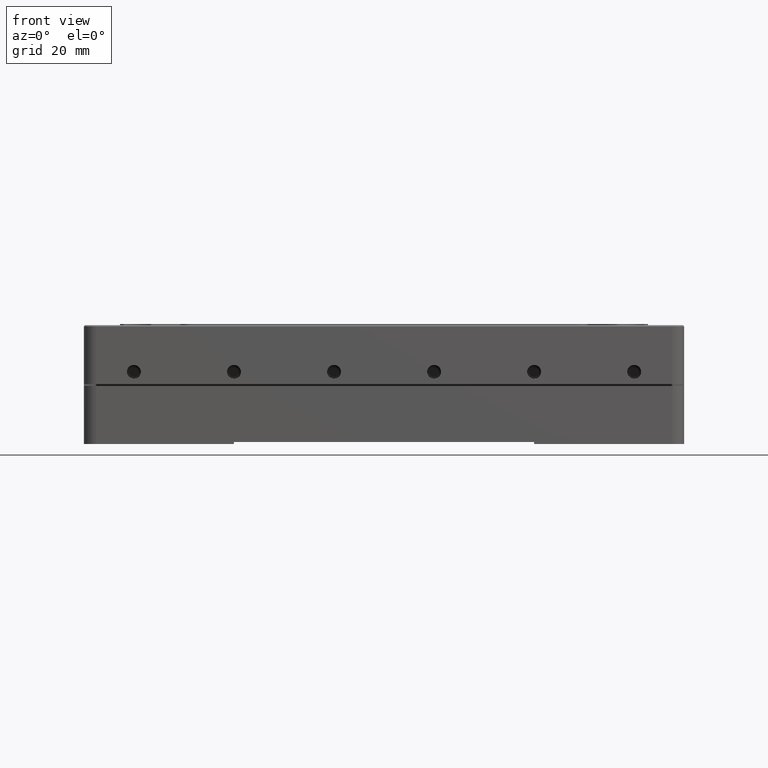
[diagram: clean part render]
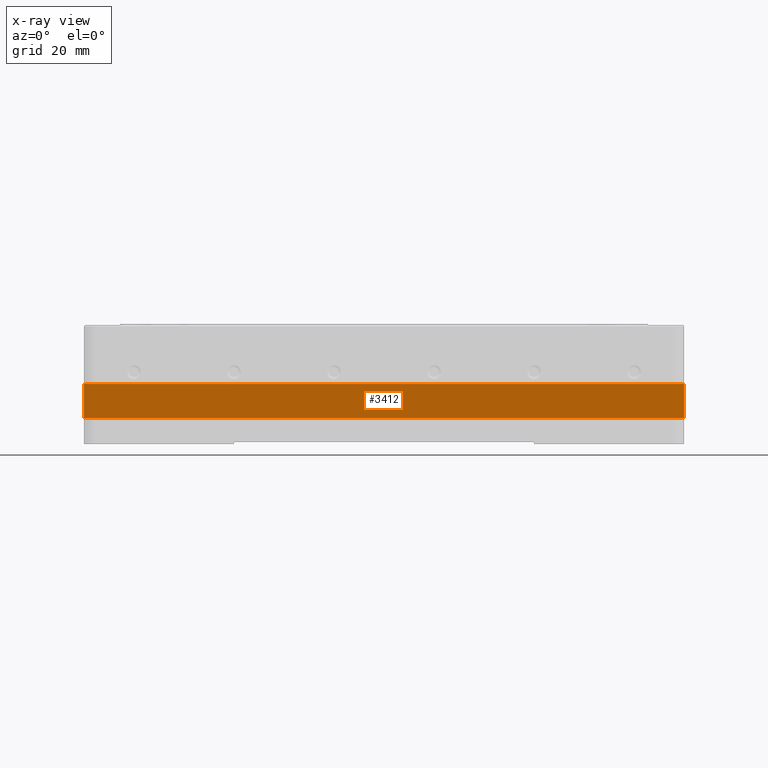
[diagram: x-ray — body ghosted, one internal face saturated and labeled with its STEP entity id]
A machine part, front view, then the same camera in x-ray: the body is ghosted and one INTERNAL B-rep face — a face not visible from any outside direction — is saturated and labeled: STEP entity #3412.
In plain terms, the highlighted planar face has unit normal (0, -1, 0).
Its self-contained STEP definition (entity closure, byte-faithful):
#851 = DIRECTION ( 'NONE',  ( -1.000000000000000000, 0.000000000000000000, -0.000000000000000000 ) ) ;
#1558 = PLANE ( 'NONE',  #13028 ) ;
#1733 = VECTOR ( 'NONE', #8888, 1000.000000000000000 ) ;
#1736 = LINE ( 'NONE', #19128, #13690 ) ;
#2069 = CARTESIAN_POINT ( 'NONE',  ( 75.00000000000000000, -39.50000000000000000, 0.000000000000000000 ) ) ;
#2229 = VERTEX_POINT ( 'NONE', #5306 ) ;
#3028 = EDGE_CURVE ( 'NONE', #14341, #11116, #10330, .T. ) ;
#3412 = ADVANCED_FACE ( 'NONE', ( #10071 ), #1558, .T. ) ;
#3464 = ORIENTED_EDGE ( 'NONE', *, *, #11761, .T. ) ;
#3637 = DIRECTION ( 'NONE',  ( -1.000000000000000000, -0.000000000000000000, -0.000000000000000000 ) ) ;
#4755 = ORIENTED_EDGE ( 'NONE', *, *, #3028, .T. ) ;
#5044 = VECTOR ( 'NONE', #3637, 1000.000000000000000 ) ;
#5228 = VERTEX_POINT ( 'NONE', #19791 ) ;
#5306 = CARTESIAN_POINT ( 'NONE',  ( 75.00000000000000000, -39.50000000000000000, -8.000000000000000000 ) ) ;
#5384 = LINE ( 'NONE', #2069, #1733 ) ;
#7398 = VECTOR ( 'NONE', #851, 1000.000000000000000 ) ;
#7664 = CARTESIAN_POINT ( 'NONE',  ( -75.00000000000000000, -39.50000000000000000, -8.000000000000000000 ) ) ;
#8157 = CARTESIAN_POINT ( 'NONE',  ( 75.00000000000000000, -39.50000000000000000, 0.5000000000000000000 ) ) ;
#8176 = EDGE_LOOP ( 'NONE', ( #21789, #4755, #3464, #20068 ) ) ;
#8888 = DIRECTION ( 'NONE',  ( 0.000000000000000000, 0.000000000000000000, -1.000000000000000000 ) ) ;
#10071 = FACE_OUTER_BOUND ( 'NONE', #8176, .T. ) ;
#10330 = LINE ( 'NONE', #19087, #5044 ) ;
#11116 = VERTEX_POINT ( 'NONE', #20314 ) ;
#11761 = EDGE_CURVE ( 'NONE', #11116, #5228, #1736, .T. ) ;
#11764 = EDGE_CURVE ( 'NONE', #14341, #2229, #5384, .T. ) ;
#11773 = CARTESIAN_POINT ( 'NONE',  ( -75.00000000000000000, -39.50000000000000000, 0.5000000000000000000 ) ) ;
#13028 = AXIS2_PLACEMENT_3D ( 'NONE', #11773, #20303, #14837 ) ;
#13690 = VECTOR ( 'NONE', #20931, 1000.000000000000000 ) ;
#14341 = VERTEX_POINT ( 'NONE', #8157 ) ;
#14837 = DIRECTION ( 'NONE',  ( 0.000000000000000000, -0.000000000000000000, -1.000000000000000000 ) ) ;
#16293 = LINE ( 'NONE', #7664, #7398 ) ;
#19087 = CARTESIAN_POINT ( 'NONE',  ( -75.00000000000000000, -39.50000000000000000, 0.5000000000000000000 ) ) ;
#19128 = CARTESIAN_POINT ( 'NONE',  ( -75.00000000000000000, -39.50000000000000000, 0.000000000000000000 ) ) ;
#19771 = EDGE_CURVE ( 'NONE', #2229, #5228, #16293, .T. ) ;
#19791 = CARTESIAN_POINT ( 'NONE',  ( -75.00000000000000000, -39.50000000000000000, -8.000000000000000000 ) ) ;
#20068 = ORIENTED_EDGE ( 'NONE', *, *, #19771, .F. ) ;
#20303 = DIRECTION ( 'NONE',  ( 0.000000000000000000, -1.000000000000000000, 0.000000000000000000 ) ) ;
#20314 = CARTESIAN_POINT ( 'NONE',  ( -75.00000000000000000, -39.50000000000000000, 0.5000000000000000000 ) ) ;
#20931 = DIRECTION ( 'NONE',  ( 0.000000000000000000, 0.000000000000000000, -1.000000000000000000 ) ) ;
#21789 = ORIENTED_EDGE ( 'NONE', *, *, #11764, .F. ) ;